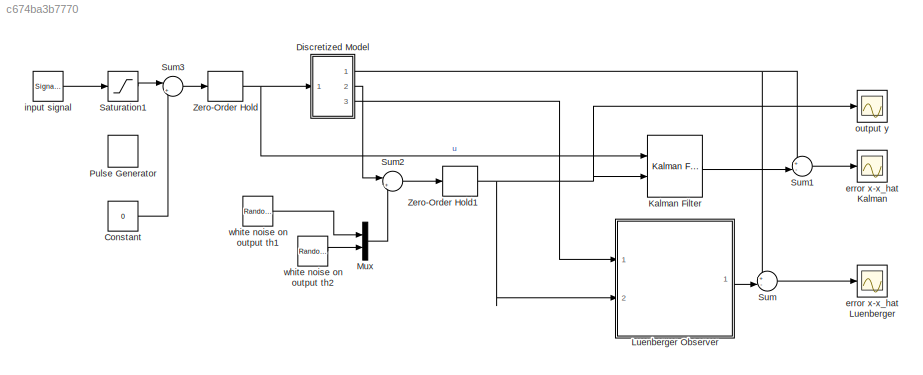
MODEL slx_c674ba3b7770
KIND model
CONFIG AbsTol = auto
CONFIG EnableMultiTasking = off
CONFIG FixedStep = auto
CONFIG InitFcn = lindiscrmodel
CONFIG MaxStep = auto
CONFIG MinStep = auto
CONFIG RelTol = 1e-3
CONFIG SampleTimeConstraint = Unconstrained
CONFIG Solver = VariableStepAuto
CONFIG SolverName = VariableStepAuto
CONFIG StartTime = 0.0
CONFIG StopTime = 20
BLOCK [Constant] Constant
  Value = 0
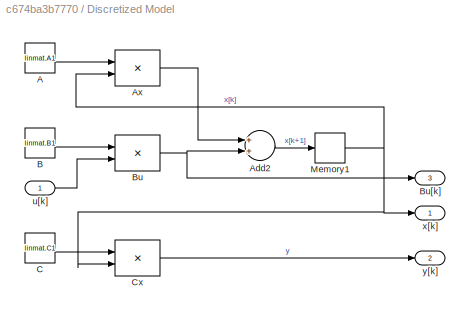
BLOCK [SubSystem] Discretized Model
  Ports = [1, 3]
  RequestExecContextInheritance = off
BLOCK [Constant] Discretized Model/A
  SampleTime = Ts
  Value = linmat.A1
BLOCK [Sum] Discretized Model/Add2
  InputSameDT = off
  OutDataTypeStr = Inherit: Inherit via internal rule
  Ports = [2, 1]
  SaturateOnIntegerOverflow = off
BLOCK [Product] Discretized Model/Ax
  InputSameDT = off
  Multiplication = Matrix(*)
  OutDataTypeStr = Inherit: Inherit via internal rule
  Ports = [2, 1]
  RndMeth = Floor
  SaturateOnIntegerOverflow = off
BLOCK [Constant] Discretized Model/B
  SampleTime = Ts
  Value = linmat.B1
BLOCK [Product] Discretized Model/Bu
  InputSameDT = off
  Multiplication = Matrix(*)
  OutDataTypeStr = Inherit: Inherit via internal rule
  Ports = [2, 1]
  RndMeth = Floor
  SaturateOnIntegerOverflow = off
BLOCK [Outport] Discretized Model/Bu[k]
  IconDisplay = Port number
  Port = 3
BLOCK [Constant] Discretized Model/C
  SampleTime = Ts
  Value = linmat.C1
BLOCK [Product] Discretized Model/Cx
  InputSameDT = off
  Multiplication = Matrix(*)
  OutDataTypeStr = Inherit: Inherit via internal rule
  Ports = [2, 1]
  RndMeth = Floor
  SaturateOnIntegerOverflow = off
BLOCK [Memory] Discretized Model/Memory1
  InitialCondition = [0;0;0;0]
BLOCK [Inport] Discretized Model/u[k]
  IconDisplay = Port number
BLOCK [Outport] Discretized Model/x[k]
  IconDisplay = Port number
BLOCK [Outport] Discretized Model/y[k]
  IconDisplay = Port number
  Port = 2
BLOCK [Reference] Kalman Filter  REF=ctrlSharedLib/Kalman Filter
  Ports = [2, 1]
  SourceBlock = ctrlSharedLib/Kalman Filter
  SourceProductBaseCode = CT
  SourceProductName = Control System Toolbox
  SourceType = ctrlKalmanFilter
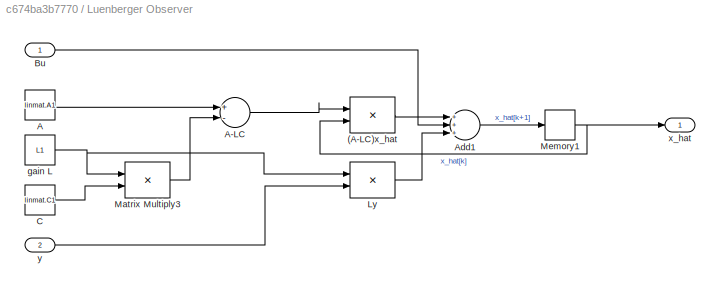
BLOCK [SubSystem] Luenberger Observer
  Ports = [2, 1]
  RequestExecContextInheritance = off
BLOCK [Product] Luenberger Observer/(A-LC)x_hat
  InputSameDT = off
  Multiplication = Matrix(*)
  OutDataTypeStr = Inherit: Inherit via internal rule
  Ports = [2, 1]
  RndMeth = Floor
  SaturateOnIntegerOverflow = off
BLOCK [Constant] Luenberger Observer/A
  SampleTime = Ts
  Value = linmat.A1
BLOCK [Sum] Luenberger Observer/A-LC
  InputSameDT = off
  Inputs = +-
  OutDataTypeStr = Inherit: Inherit via internal rule
  Ports = [2, 1]
  SaturateOnIntegerOverflow = off
BLOCK [Sum] Luenberger Observer/Add1
  InputSameDT = off
  Inputs = +++
  OutDataTypeStr = Inherit: Inherit via internal rule
  Ports = [3, 1]
  SaturateOnIntegerOverflow = off
BLOCK [Inport] Luenberger Observer/Bu
  IconDisplay = Port number
BLOCK [Constant] Luenberger Observer/C
  SampleTime = Ts
  Value = linmat.C1
BLOCK [Product] Luenberger Observer/Ly
  InputSameDT = off
  Multiplication = Matrix(*)
  OutDataTypeStr = Inherit: Inherit via internal rule
  Ports = [2, 1]
  RndMeth = Floor
  SaturateOnIntegerOverflow = off
BLOCK [Product] Luenberger Observer/Matrix Multiply3
  InputSameDT = off
  Multiplication = Matrix(*)
  OutDataTypeStr = Inherit: Inherit via internal rule
  Ports = [2, 1]
  RndMeth = Floor
  SaturateOnIntegerOverflow = off
BLOCK [Memory] Luenberger Observer/Memory1
  InitialCondition = [0;0;0;0]
BLOCK [Constant] Luenberger Observer/gain L
  SampleTime = Ts
  Value = L1
BLOCK [Outport] Luenberger Observer/x_hat
  IconDisplay = Port number
BLOCK [Inport] Luenberger Observer/y
  IconDisplay = Port number
  Port = 2
BLOCK [Mux] Mux
  DisplayOption = bar
  Inputs = 2
  Ports = [2, 1]
BLOCK [DiscretePulseGenerator] Pulse Generator
  Amplitude = 0.5
  Period = 5
  Ports = [0, 1]
  PulseType = Time based
  PulseWidth = 5
BLOCK [Saturate] Saturation1
  InputPortMap = u0
  LowerLimit = -1
  Ports = [1, 1]
  UpperLimit = 1
BLOCK [Sum] Sum
  IconShape = round
  InputSameDT = off
  Inputs = +-|
  OutDataTypeStr = Inherit: Inherit via internal rule
  Ports = [2, 1]
  SaturateOnIntegerOverflow = off
BLOCK [Sum] Sum1
  IconShape = round
  InputSameDT = off
  Inputs = +-|
  OutDataTypeStr = Inherit: Inherit via internal rule
  Ports = [2, 1]
  SaturateOnIntegerOverflow = off
BLOCK [Sum] Sum2
  IconShape = round
  InputSameDT = off
  Inputs = |++
  OutDataTypeStr = Inherit: Inherit via internal rule
  Ports = [2, 1]
  SaturateOnIntegerOverflow = off
BLOCK [Sum] Sum3
  IconShape = round
  InputSameDT = off
  Inputs = |++
  OutDataTypeStr = Inherit: Inherit via internal rule
  Ports = [2, 1]
  SaturateOnIntegerOverflow = off
BLOCK [ZeroOrderHold] Zero-Order Hold
  SampleTime = Ts
BLOCK [ZeroOrderHold] Zero-Order Hold1
  SampleTime = Ts
BLOCK [Scope] error x-x_hat Kalman
  Floating = off
  NumInputPorts = 1
  Ports = [1]
  ScopeSpecificationString = Simulink.scopes.TimeScopeBlockCfg('CurrentConfiguration', extmgr.ConfigurationSet(extmgr.Configuration('Core','General UI',true),extmgr.Configuration('Core','Source UI',true),extmgr.Configuration('Sources','WiredSimulink',true,'DataLoggingVariableName','ScopeData1'),extmgr.Configuration('Visuals','Time Domain',true,'SerializedDisplays',{struct('MinYLimReal','-0.01355','MaxYLimReal','0.00958','YLab...<+1560ch>
BLOCK [Scope] error x-x_hat Luenberger
  Floating = off
  NumInputPorts = 1
  Ports = [1]
  ScopeSpecificationString = Simulink.scopes.TimeScopeBlockCfg('CurrentConfiguration', extmgr.ConfigurationSet(extmgr.Configuration('Core','General UI',true),extmgr.Configuration('Core','Source UI',true),extmgr.Configuration('Sources','WiredSimulink',true,'DataLoggingVariableName','ScopeData1'),extmgr.Configuration('Visuals','Time Domain',true,'SerializedDisplays',{struct('MinYLimReal','-0.03213','MaxYLimReal','0.02896','YLab...<+1559ch>
BLOCK [SignalGenerator] input signal
  Amplitude = 0.3
  Frequency = 0.5
  Ports = [0, 1]
BLOCK [Scope] output y
  Floating = off
  NumInputPorts = 1
  Ports = [1]
  ScopeSpecificationString = Simulink.scopes.TimeScopeBlockCfg('CurrentConfiguration', extmgr.ConfigurationSet(extmgr.Configuration('Core','General UI',true),extmgr.Configuration('Core','Source UI',true),extmgr.Configuration('Sources','WiredSimulink',true,'DataLoggingVariableName','ScopeData1'),extmgr.Configuration('Visuals','Time Domain',true,'SerializedDisplays',{struct('MinYLimReal','-2.87109','MaxYLimReal','3.28735','YLab...<+1441ch>
BLOCK [RandomNumber] white noise on output th1
  SampleTime = 0.01
  Variance = 0.00001
BLOCK [RandomNumber] white noise on output th2
  SampleTime = 0.01
  Variance = 0.00001
LINE Constant:1 -> Sum3:2
LINE Discretized Model/A:1 -> Discretized Model/Ax:1
LINE Discretized Model/Add2:1 -> Discretized Model/Memory1:1
LINE Discretized Model/Ax:1 -> Discretized Model/Add2:1
LINE Discretized Model/B:1 -> Discretized Model/Bu:1
NET Discretized Model/Bu:1 -> Discretized Model/Add2:2, Discretized Model/Bu[k]:1
LINE Discretized Model/C:1 -> Discretized Model/Cx:1
LINE Discretized Model/Cx:1 -> Discretized Model/y[k]:1
NET Discretized Model/Memory1:1 -> Discretized Model/Ax:2, Discretized Model/Cx:2, Discretized Model/x[k]:1
LINE Discretized Model/u[k]:1 -> Discretized Model/Bu:2
NET Discretized Model:1 -> Sum1:1, Sum:1
LINE Discretized Model:2 -> Sum2:1
LINE Discretized Model:3 -> Luenberger Observer:1
LINE Kalman Filter:1 -> Sum1:2
LINE Luenberger Observer/(A-LC)x_hat:1 -> Luenberger Observer/Add1:1
LINE Luenberger Observer/A-LC:1 -> Luenberger Observer/(A-LC)x_hat:1
LINE Luenberger Observer/A:1 -> Luenberger Observer/A-LC:1
LINE Luenberger Observer/Add1:1 -> Luenberger Observer/Memory1:1
LINE Luenberger Observer/Bu:1 -> Luenberger Observer/Add1:2
LINE Luenberger Observer/C:1 -> Luenberger Observer/Matrix Multiply3:2
LINE Luenberger Observer/Ly:1 -> Luenberger Observer/Add1:3
LINE Luenberger Observer/Matrix Multiply3:1 -> Luenberger Observer/A-LC:2
NET Luenberger Observer/Memory1:1 -> Luenberger Observer/(A-LC)x_hat:2, Luenberger Observer/x_hat:1
NET Luenberger Observer/gain L:1 -> Luenberger Observer/Ly:1, Luenberger Observer/Matrix Multiply3:1
LINE Luenberger Observer/y:1 -> Luenberger Observer/Ly:2
LINE Luenberger Observer:1 -> Sum:2
LINE Mux:1 -> Sum2:2
LINE Saturation1:1 -> Sum3:1
LINE Sum1:1 -> error x-x_hat Kalman:1
LINE Sum2:1 -> Zero-Order Hold1:1
LINE Sum3:1 -> Zero-Order Hold:1
LINE Sum:1 -> error x-x_hat Luenberger:1
NET Zero-Order Hold1:1 -> Kalman Filter:2, Luenberger Observer:2, output y:1
NET Zero-Order Hold:1 -> Discretized Model:1, Kalman Filter:1
LINE input signal:1 -> Saturation1:1
LINE white noise on output th1:1 -> Mux:1
LINE white noise on output th2:1 -> Mux:2
note: NET lines group one-source signal fan-out (src -> all destinations, sorted); 1:1 wires keep LINE
